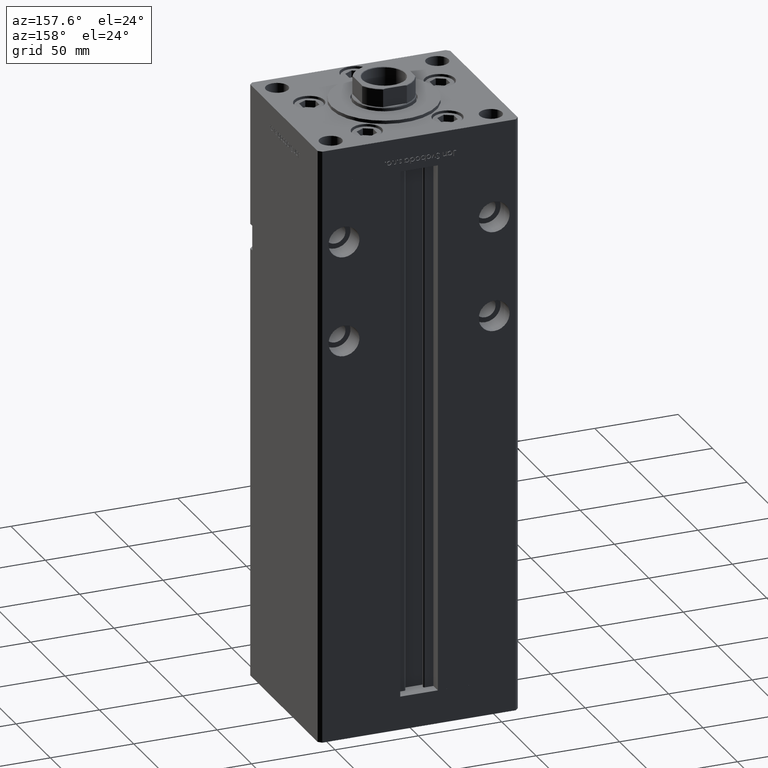
[diagram: clean part render]
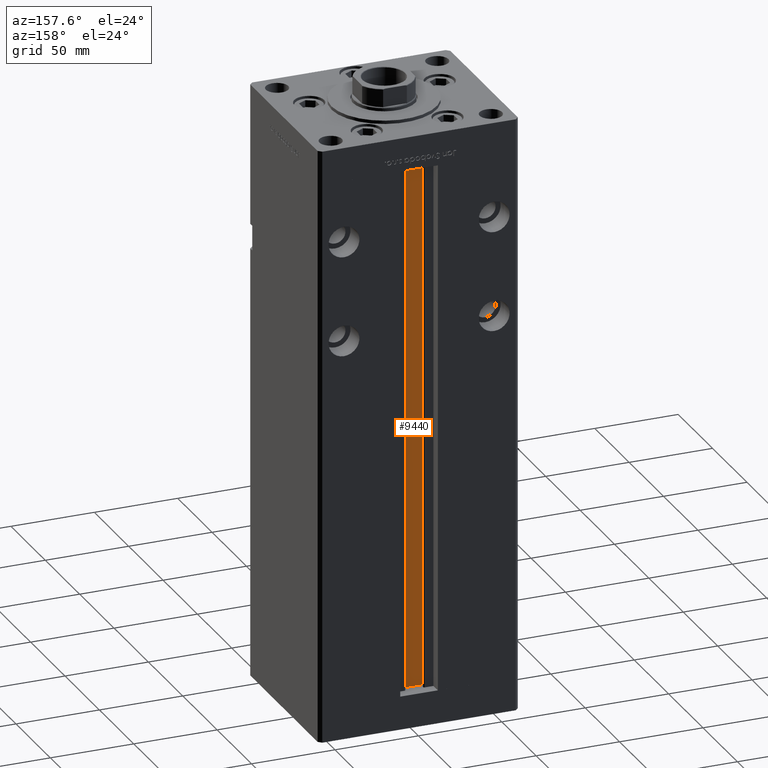
[diagram: same view with one face highlighted and labeled with its STEP entity id]
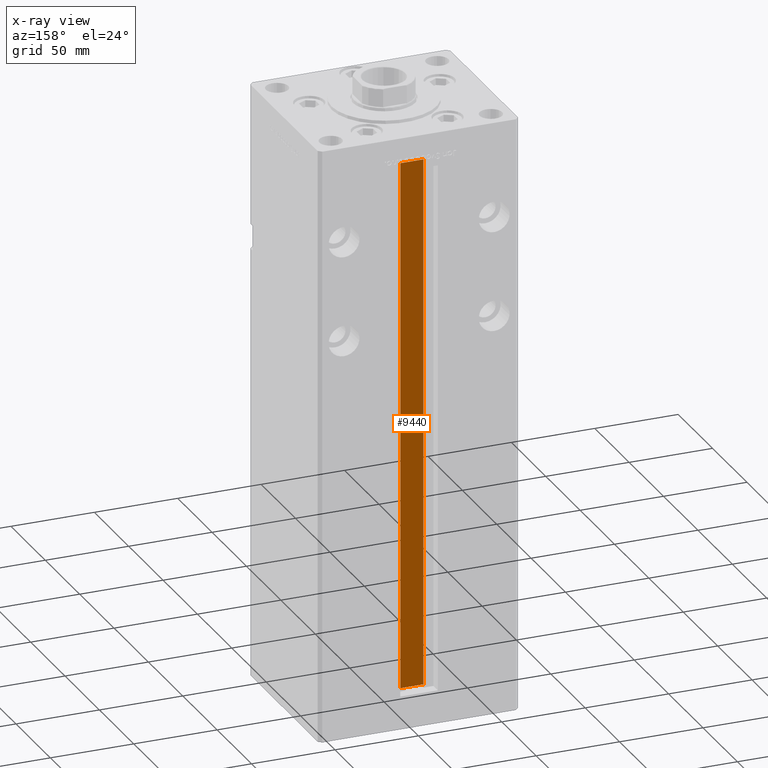
[diagram: x-ray of the same camera — body ghosted, the highlighted face saturated]
A machine part, auxiliary view. The second image highlights one B-rep face of the part: STEP entity #9440.
The next image is the same camera in x-ray: the body ghosted, the highlighted face saturated — about 0% of this face is hidden behind the body in this view.
In plain terms, the highlighted planar face has unit normal (0, -1, 0).
Its self-contained STEP definition (entity closure, byte-faithful):
#288 = ORIENTED_EDGE ( 'NONE', *, *, #2845, .F. ) ;
#956 = ORIENTED_EDGE ( 'NONE', *, *, #48886, .T. ) ;
#2528 = DIRECTION ( 'NONE',  ( -0.000000000000000000, -0.000000000000000000, 1.000000000000000000 ) ) ;
#2845 = EDGE_CURVE ( 'NONE', #29669, #5337, #52575, .T. ) ;
#3532 = PLANE ( 'NONE',  #20351 ) ;
#4870 = CARTESIAN_POINT ( 'NONE',  ( -6.876153656360465050, 40.49999999999987210, 318.5000000000000000 ) ) ;
#5337 = VERTEX_POINT ( 'NONE', #4870 ) ;
#5903 = VERTEX_POINT ( 'NONE', #50625 ) ;
#6574 = CARTESIAN_POINT ( 'NONE',  ( -6.876153656360465050, 40.49999999999987210, 0.000000000000000000 ) ) ;
#7280 = FACE_OUTER_BOUND ( 'NONE', #35532, .T. ) ;
#9440 = ADVANCED_FACE ( 'NONE', ( #7280 ), #3532, .F. ) ;
#12213 = EDGE_CURVE ( 'NONE', #5903, #39296, #16763, .T. ) ;
#12729 = VECTOR ( 'NONE', #32849, 1000.000000000000000 ) ;
#12803 = CARTESIAN_POINT ( 'NONE',  ( 6.876153656360465050, 40.49999999999987210, 0.000000000000000000 ) ) ;
#13094 = ORIENTED_EDGE ( 'NONE', *, *, #12213, .F. ) ;
#15882 = VECTOR ( 'NONE', #27882, 1000.000000000000000 ) ;
#16239 = EDGE_CURVE ( 'NONE', #39296, #29669, #31209, .T. ) ;
#16763 = LINE ( 'NONE', #49229, #12729 ) ;
#20351 = AXIS2_PLACEMENT_3D ( 'NONE', #23659, #40015, #31955 ) ;
#23196 = CARTESIAN_POINT ( 'NONE',  ( 6.876153656360465050, 40.49999999999987210, 0.000000000000000000 ) ) ;
#23659 = CARTESIAN_POINT ( 'NONE',  ( 6.876153656360465050, 40.49999999999987210, 0.000000000000000000 ) ) ;
#26440 = LINE ( 'NONE', #6574, #47277 ) ;
#27882 = DIRECTION ( 'NONE',  ( -1.000000000000000000, 0.000000000000000000, 0.000000000000000000 ) ) ;
#29669 = VERTEX_POINT ( 'NONE', #49862 ) ;
#31209 = LINE ( 'NONE', #23196, #50427 ) ;
#31955 = DIRECTION ( 'NONE',  ( 0.000000000000000000, 0.000000000000000000, -1.000000000000000000 ) ) ;
#32849 = DIRECTION ( 'NONE',  ( 1.000000000000000000, -0.000000000000000000, -0.000000000000000000 ) ) ;
#35532 = EDGE_LOOP ( 'NONE', ( #35614, #13094, #956, #288 ) ) ;
#35614 = ORIENTED_EDGE ( 'NONE', *, *, #16239, .F. ) ;
#39296 = VERTEX_POINT ( 'NONE', #12803 ) ;
#40015 = DIRECTION ( 'NONE',  ( 0.000000000000000000, -1.000000000000000000, -0.000000000000000000 ) ) ;
#42808 = DIRECTION ( 'NONE',  ( -0.000000000000000000, -0.000000000000000000, 1.000000000000000000 ) ) ;
#43735 = CARTESIAN_POINT ( 'NONE',  ( 0.000000000000000000, 40.49999999999987210, 318.5000000000000000 ) ) ;
#47277 = VECTOR ( 'NONE', #42808, 1000.000000000000000 ) ;
#48886 = EDGE_CURVE ( 'NONE', #5903, #5337, #26440, .T. ) ;
#49229 = CARTESIAN_POINT ( 'NONE',  ( 6.876153656360465050, 40.49999999999987210, 0.000000000000000000 ) ) ;
#49862 = CARTESIAN_POINT ( 'NONE',  ( 6.876153656360465050, 40.49999999999987210, 318.5000000000000000 ) ) ;
#50427 = VECTOR ( 'NONE', #2528, 1000.000000000000000 ) ;
#50625 = CARTESIAN_POINT ( 'NONE',  ( -6.876153656360465050, 40.49999999999987210, 0.000000000000000000 ) ) ;
#52575 = LINE ( 'NONE', #43735, #15882 ) ;